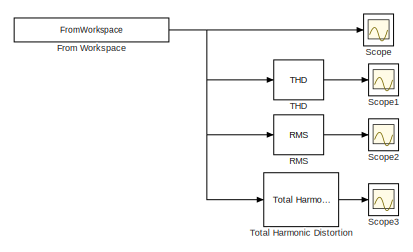
[diagram: root canvas - part 1/2, top left region]
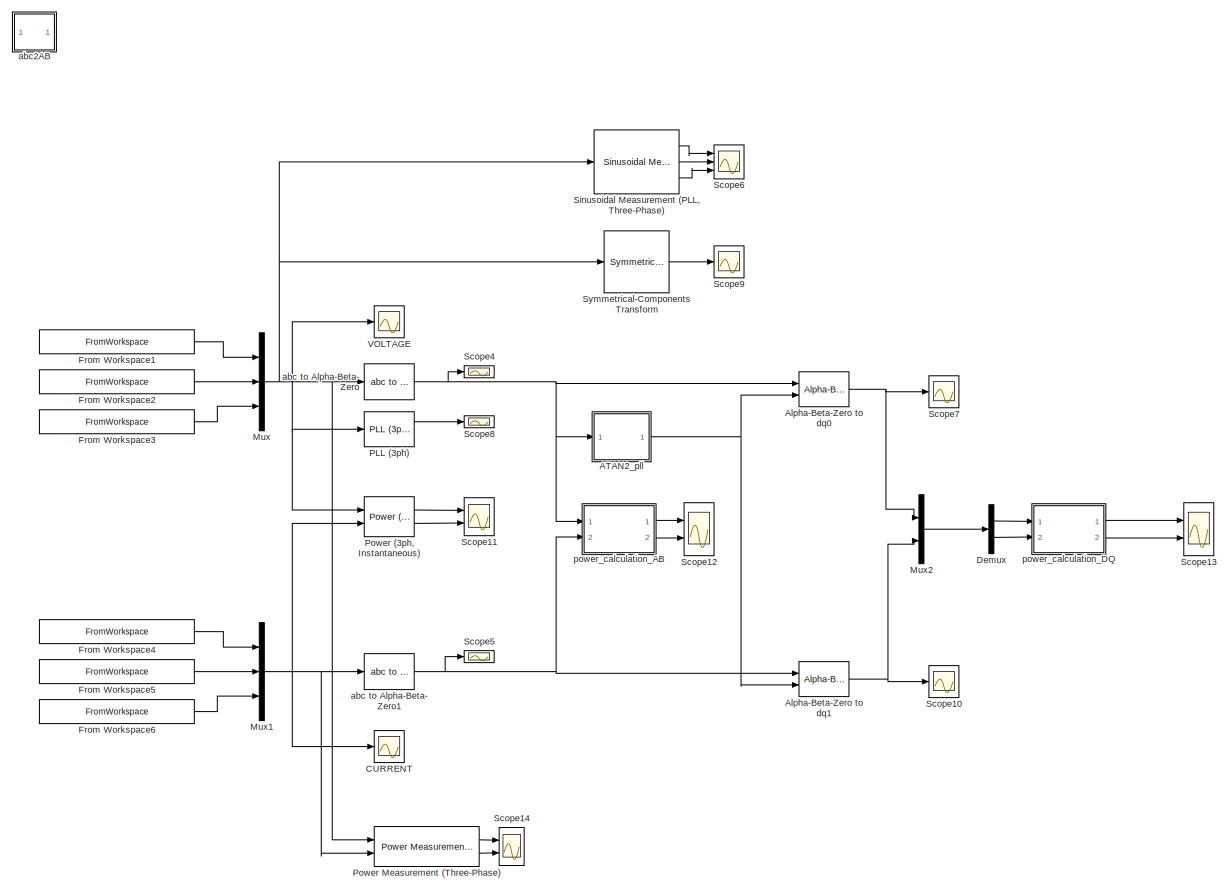
[diagram: root canvas - part 2/2, most of the canvas]
MODEL slx_ed6e85ab8370
KIND model
CONFIG AbsTol = auto
CONFIG EnableMultiTasking = off
CONFIG FixedStep = auto
CONFIG MaxStep = 1/25e3
CONFIG MinStep = auto
CONFIG RelTol = 1e-3
CONFIG SampleTimeConstraint = Unconstrained
CONFIG SolverName = VariableStepAuto
CONFIG StartTime = 0.0
CONFIG StopTime = 0.1
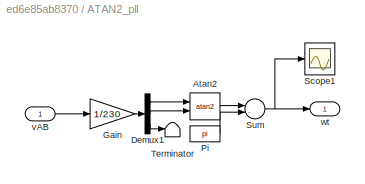
BLOCK [SubSystem] ATAN2_pll
  Ports = [1, 1]
  RequestExecContextInheritance = off
BLOCK [Trigonometry] ATAN2_pll/Atan2
  Operator = atan2
  Ports = [2, 1]
BLOCK [Demux] ATAN2_pll/Demux1
  Outputs = 3
  Ports = [1, 3]
BLOCK [Gain] ATAN2_pll/Gain
  Gain = 1/230
BLOCK [Constant] ATAN2_pll/Pi
  OutDataTypeStr = Inherit: Inherit via back propagation
  Value = pi
BLOCK [Scope] ATAN2_pll/Scope1
  Floating = off
  NumInputPorts = 1
  Ports = [1]
  ScopeSpecificationString = Simulink.scopes.TimeScopeBlockCfg('CurrentConfiguration', extmgr.ConfigurationSet(extmgr.Configuration('Core','General UI',true),extmgr.Configuration('Core','Source UI',true),extmgr.Configuration('Sources','WiredSimulink',true,'DataLoggingVariableName','ScopeData2'),extmgr.Configuration('Visuals','Time Domain',true,'SerializedDisplays',{struct('MinYLimReal','-0.78401','MaxYLimReal','7.06537','YLab...<+1389ch>
BLOCK [Sum] ATAN2_pll/Sum
  Inputs = |-+
  Ports = [2, 1]
BLOCK [Terminator] ATAN2_pll/Terminator
BLOCK [Inport] ATAN2_pll/vAB
BLOCK [Outport] ATAN2_pll/wt
BLOCK [Reference] Alpha-Beta-Zero to dq0  REF=spsAlphaBetaZerotodq0Lib/Alpha-Beta-Zero
to dq0
  Ports = [2, 1]
  SourceBlock = spsAlphaBetaZerotodq0Lib/Alpha-Beta-Zero\nto dq0
  SourceProductBaseCode = PS
  SourceType = Alpha-Beta-Zero to dq0 Transformation
BLOCK [Reference] Alpha-Beta-Zero to dq1  REF=spsAlphaBetaZerotodq0Lib/Alpha-Beta-Zero
to dq0
  Ports = [2, 1]
  SourceBlock = spsAlphaBetaZerotodq0Lib/Alpha-Beta-Zero\nto dq0
  SourceProductBaseCode = PS
  SourceType = Alpha-Beta-Zero to dq0 Transformation
BLOCK [Scope] CURRENT
  Floating = off
  NumInputPorts = 1
  Ports = [1]
  ScopeSpecificationString = Simulink.scopes.TimeScopeBlockCfg('CurrentConfiguration', extmgr.ConfigurationSet(extmgr.Configuration('Core','General UI',true),extmgr.Configuration('Core','Source UI',true),extmgr.Configuration('Sources','WiredSimulink',true,'DataLoggingVariableName','ScopeData10'),extmgr.Configuration('Visuals','Time Domain',true,'SerializedDisplays',{struct('MinYLimReal','-6.3737','MaxYLimReal','6.37369','YLab...<+1453ch>
BLOCK [Demux] Demux
  Outputs = 2
  Ports = [1, 2]
BLOCK [FromWorkspace] From Workspace
  Commented = on
  SampleTime = meas4.Timestamp(2)-meas4.Timestamp(1)
  VariableName = [meas4.Timestamp meas4.V_ch1]
BLOCK [FromWorkspace] From Workspace1
  SampleTime = -1
  VariableName = [meas32.Timestamp meas32.V_ch1]
BLOCK [FromWorkspace] From Workspace2
  SampleTime = -1
  VariableName = [meas32.Timestamp meas32.V_ch2]
BLOCK [FromWorkspace] From Workspace3
  SampleTime = -1
  VariableName = [meas32.Timestamp meas32.V_ch3]
BLOCK [FromWorkspace] From Workspace4
  SampleTime = -1
  VariableName = [meas32.Timestamp meas32.I_ch1]
BLOCK [FromWorkspace] From Workspace5
  SampleTime = -1
  VariableName = [meas32.Timestamp meas32.I_ch2]
BLOCK [FromWorkspace] From Workspace6
  SampleTime = -1
  VariableName = [meas32.Timestamp meas32.I_ch3]
BLOCK [Mux] Mux
  DisplayOption = bar
  Inputs = 3
  Ports = [3, 1]
BLOCK [Mux] Mux1
  DisplayOption = bar
  Inputs = 3
  Ports = [3, 1]
BLOCK [Mux] Mux2
  DisplayOption = bar
  Inputs = 2
  Ports = [2, 1]
BLOCK [Reference] PLL (3ph)  REF=spsPLL3phLib/PLL
(3ph)
  Ports = [1, 2]
  SourceBlock = spsPLL3phLib/PLL\n(3ph)
  SourceProductBaseCode = PS
  SourceType = PLL (3ph)
BLOCK [Reference] Power (3ph, Instantaneous)  REF=spsPower3phInstantaneousLib/Power
(3ph, Instantaneous)
  Ports = [2, 2]
  SourceBlock = spsPower3phInstantaneousLib/Power\n(3ph, Instantaneous)
  SourceProductBaseCode = PS
  SourceType = Power (3ph, Instantaneous)
BLOCK [Reference] Power Measurement (Three-Phase)  REF=eePowerMeasurement/Power Measurement
(Three-Phase)
  Ports = [2, 2]
  SourceBlock = eePowerMeasurement/Power Measurement\n(Three-Phase)
  SourceProductBaseCode = PS
  SourceType = Power Measurement (Three-Phase)
BLOCK [Reference] RMS  REF=spsRMSLib/RMS
  Commented = on
  Ports = [1, 1]
  SourceBlock = spsRMSLib/RMS
  SourceProductBaseCode = PS
  SourceType = RMS
BLOCK [Scope] Scope
  Commented = on
  Floating = off
  NumInputPorts = 1
  Ports = [1]
  ScopeSpecificationString = Simulink.scopes.TimeScopeBlockCfg('CurrentConfiguration', extmgr.ConfigurationSet(extmgr.Configuration('Core','General UI',true),extmgr.Configuration('Core','Source UI',true),extmgr.Configuration('Sources','WiredSimulink',true),extmgr.Configuration('Visuals','Time Domain',true,'SerializedDisplays',{struct('MinYLimReal','-373.6431','MaxYLimReal','385.96022','YLabelReal','','MinYLimMag',' 0.00000','...<+1392ch>
BLOCK [Scope] Scope1
  Commented = on
  Floating = off
  NumInputPorts = 1
  Ports = [1]
  ScopeSpecificationString = Simulink.scopes.TimeScopeBlockCfg('CurrentConfiguration', extmgr.ConfigurationSet(extmgr.Configuration('Core','General UI',true),extmgr.Configuration('Core','Source UI',true),extmgr.Configuration('Sources','WiredSimulink',true,'DataLoggingVariableName','ScopeData1'),extmgr.Configuration('Visuals','Time Domain',true,'SerializedDisplays',{struct('MinYLimReal','-0.00317','MaxYLimReal','0.02853','YLab...<+1408ch>
BLOCK [Scope] Scope10
  Floating = off
  NumInputPorts = 1
  Ports = [1]
  ScopeSpecificationString = Simulink.scopes.TimeScopeBlockCfg('CurrentConfiguration', extmgr.ConfigurationSet(extmgr.Configuration('Core','General UI',true),extmgr.Configuration('Core','Source UI',true),extmgr.Configuration('Sources','WiredSimulink',true,'DataLoggingVariableName','ScopeData6'),extmgr.Configuration('Visuals','Time Domain',true,'SerializedDisplays',{struct('MinYLimReal','-0.6251','MaxYLimReal','5.62586','YLabe...<+1481ch>
BLOCK [Scope] Scope11
  Floating = off
  NumInputPorts = 2
  Ports = [2]
  ScopeSpecificationString = Simulink.scopes.TimeScopeBlockCfg('CurrentConfiguration', extmgr.ConfigurationSet(extmgr.Configuration('Core','General UI',true),extmgr.Configuration('Core','Source UI',true),extmgr.Configuration('Sources','WiredSimulink',true,'DataLoggingVariableName','ScopeData7'),extmgr.Configuration('Visuals','Time Domain',true,'SerializedDisplays',{struct('MinYLimReal','1724.79942','MaxYLimReal','1725.60865',...<+2117ch>
BLOCK [Scope] Scope12
  Floating = off
  NumInputPorts = 2
  Ports = [2]
  ScopeSpecificationString = Simulink.scopes.TimeScopeBlockCfg('CurrentConfiguration', extmgr.ConfigurationSet(extmgr.Configuration('Core','General UI',true),extmgr.Configuration('Core','Source UI',true),extmgr.Configuration('Sources','WiredSimulink',true,'DataLoggingVariableName','ScopeData8'),extmgr.Configuration('Visuals','Time Domain',true,'SerializedDisplays',{struct('MinYLimReal','452.98094','MaxYLimReal','754.15791','Y...<+2128ch>
BLOCK [Scope] Scope13
  Floating = off
  NumInputPorts = 2
  Ports = [2]
  ScopeSpecificationString = Simulink.scopes.TimeScopeBlockCfg('CurrentConfiguration', extmgr.ConfigurationSet(extmgr.Configuration('Core','General UI',true),extmgr.Configuration('Core','Source UI',true),extmgr.Configuration('Sources','WiredSimulink',true,'DataLoggingVariableName','ScopeData1'),extmgr.Configuration('Visuals','Time Domain',true,'SerializedDisplays',{struct('MinYLimReal','679.47142','MaxYLimReal','1131.23687','...<+2130ch>
BLOCK [Scope] Scope14
  Floating = off
  NumInputPorts = 2
  Ports = [2]
  ScopeSpecificationString = Simulink.scopes.TimeScopeBlockCfg('CurrentConfiguration', extmgr.ConfigurationSet(extmgr.Configuration('Core','General UI',true),extmgr.Configuration('Core','Source UI',true),extmgr.Configuration('Sources','WiredSimulink',true,'DataLoggingVariableName','ScopeData2'),extmgr.Configuration('Visuals','Time Domain',true,'SerializedDisplays',{struct('MinYLimReal','-111.10952','MaxYLimReal','995.49671','...<+1701ch>
BLOCK [Scope] Scope2
  Commented = on
  Floating = off
  NumInputPorts = 1
  Ports = [1]
  ScopeSpecificationString = Simulink.scopes.TimeScopeBlockCfg('CurrentConfiguration', extmgr.ConfigurationSet(extmgr.Configuration('Core','General UI',true),extmgr.Configuration('Core','Source UI',true),extmgr.Configuration('Sources','WiredSimulink',true,'DataLoggingVariableName','ScopeData2'),extmgr.Configuration('Visuals','Time Domain',true,'SerializedDisplays',{struct('MinYLimReal','228.07838','MaxYLimReal','247.29455','Y...<+1422ch>
BLOCK [Scope] Scope3
  Commented = on
  Floating = off
  NumInputPorts = 1
  Ports = [1]
  ScopeSpecificationString = Simulink.scopes.TimeScopeBlockCfg('CurrentConfiguration', extmgr.ConfigurationSet(extmgr.Configuration('Core','General UI',true),extmgr.Configuration('Core','Source UI',true),extmgr.Configuration('Sources','WiredSimulink',true,'DataLoggingVariableName','ScopeData3'),extmgr.Configuration('Visuals','Time Domain',true,'SerializedDisplays',{struct('MinYLimReal','-0.31352','MaxYLimReal','2.82172','YLab...<+1430ch>
BLOCK [Scope] Scope4
  Floating = off
  NumInputPorts = 1
  Ports = [1]
  ScopeSpecificationString = Simulink.scopes.TimeScopeBlockCfg('CurrentConfiguration', extmgr.ConfigurationSet(extmgr.Configuration('Core','General UI',true),extmgr.Configuration('Core','Source UI',true),extmgr.Configuration('Sources','WiredSimulink',true,'DataLoggingVariableName','ScopeData2'),extmgr.Configuration('Visuals','Time Domain',true,'SerializedDisplays',{struct('MinYLimReal','49.95637','MaxYLimReal','50.02381','YLa...<+1422ch>
BLOCK [Scope] Scope5
  Floating = off
  NumInputPorts = 1
  Ports = [1]
  ScopeSpecificationString = Simulink.scopes.TimeScopeBlockCfg('CurrentConfiguration', extmgr.ConfigurationSet(extmgr.Configuration('Core','General UI',true),extmgr.Configuration('Core','Source UI',true),extmgr.Configuration('Sources','WiredSimulink',true,'DataLoggingVariableName','ScopeData3'),extmgr.Configuration('Visuals','Time Domain',true,'SerializedDisplays',{struct('MinYLimReal','-6.14075','MaxYLimReal','6.17318','YLab...<+1486ch>
BLOCK [Scope] Scope6
  Floating = off
  NumInputPorts = 3
  Ports = [3]
  ScopeSpecificationString = Simulink.scopes.TimeScopeBlockCfg('CurrentConfiguration', extmgr.ConfigurationSet(extmgr.Configuration('Core','General UI',true),extmgr.Configuration('Core','Source UI',true),extmgr.Configuration('Sources','WiredSimulink',true,'DataLoggingVariableName','ScopeData3'),extmgr.Configuration('Visuals','Time Domain',true,'SerializedDisplays',{struct('MinYLimReal','50.00000','MaxYLimReal','70.00000','YLa...<+2851ch>
BLOCK [Scope] Scope7
  Floating = off
  NumInputPorts = 1
  Ports = [1]
  ScopeSpecificationString = Simulink.scopes.TimeScopeBlockCfg('CurrentConfiguration', extmgr.ConfigurationSet(extmgr.Configuration('Core','General UI',true),extmgr.Configuration('Core','Source UI',true),extmgr.Configuration('Sources','WiredSimulink',true,'DataLoggingVariableName','ScopeData4'),extmgr.Configuration('Visuals','Time Domain',true,'SerializedDisplays',{struct('MinYLimReal','-28.75441','MaxYLimReal','258.7896','YL...<+1489ch>
BLOCK [Scope] Scope8
  Floating = off
  NumInputPorts = 1
  Ports = [1]
  ScopeSpecificationString = Simulink.scopes.TimeScopeBlockCfg('CurrentConfiguration', extmgr.ConfigurationSet(extmgr.Configuration('Core','General UI',true),extmgr.Configuration('Core','Source UI',true),extmgr.Configuration('Sources','WiredSimulink',true,'DataLoggingVariableName','ScopeData5'),extmgr.Configuration('Visuals','Time Domain',true,'SerializedDisplays',{struct('MinYLimReal','58.39624','MaxYLimReal','60.83421','YLa...<+1422ch>
BLOCK [Scope] Scope9
  Floating = off
  NumInputPorts = 1
  Ports = [1]
  ScopeSpecificationString = Simulink.scopes.TimeScopeBlockCfg('CurrentConfiguration', extmgr.ConfigurationSet(extmgr.Configuration('Core','General UI',true),extmgr.Configuration('Core','Source UI',true),extmgr.Configuration('Sources','WiredSimulink',true,'DataLoggingVariableName','ScopeData1'),extmgr.Configuration('Visuals','Time Domain',true,'SerializedDisplays',{struct('MinYLimReal','-90.78296','MaxYLimReal','94.92239','YL...<+1651ch>
BLOCK [Reference] Sinusoidal Measurement (PLL, Three-Phase)  REF=eeSinusoidalMeasurementV2/Sinusoidal Measurement
(PLL, Three-Phase)
  Ports = [1, 3]
  SourceBlock = eeSinusoidalMeasurementV2/Sinusoidal Measurement\n(PLL, Three-Phase)
  SourceProductBaseCode = PS
  SourceType = Sinusoidal Measurement (PLL, Three-Phase)
BLOCK [Reference] Symmetrical-Components Transform  REF=eeTransforms/Symmetrical-Components
Transform
  Ports = [1, 1]
  SourceBlock = eeTransforms/Symmetrical-Components\nTransform
  SourceProductBaseCode = PS
  SourceType = Symmetrical-Components Transform
BLOCK [Reference] THD  REF=spsTHDLib/THD
  Commented = on
  Ports = [1, 1]
  SourceBlock = spsTHDLib/THD
  SourceProductBaseCode = PS
  SourceType = THD
BLOCK [Reference] Total Harmonic Distortion  REF=eeTotalHarmonicDistorsion/Total Harmonic
Distortion
  Commented = on
  Ports = [1, 1]
  SourceBlock = eeTotalHarmonicDistorsion/Total Harmonic\nDistortion
  SourceProductBaseCode = PS
  SourceType = Total Harmonic Distortion
BLOCK [Scope] VOLTAGE
  Floating = off
  NumInputPorts = 1
  Ports = [1]
  ScopeSpecificationString = Simulink.scopes.TimeScopeBlockCfg('CurrentConfiguration', extmgr.ConfigurationSet(extmgr.Configuration('Core','General UI',true),extmgr.Configuration('Core','Source UI',true),extmgr.Configuration('Sources','WiredSimulink',true,'DataLoggingVariableName','ScopeData1'),extmgr.Configuration('Visuals','Time Domain',true,'SerializedDisplays',{struct('MinYLimReal','-287.49068','MaxYLimReal','287.48342','...<+1474ch>
BLOCK [Reference] abc to Alpha-Beta-Zero  REF=spsabctoAlphaBetaZeroLib/abc to
Alpha-Beta-Zero
  Ports = [1, 1]
  SourceBlock = spsabctoAlphaBetaZeroLib/abc to\nAlpha-Beta-Zero
  SourceProductBaseCode = PS
  SourceType = abc to Alpha-Beta-Zero Transformation
BLOCK [Reference] abc to Alpha-Beta-Zero1  REF=spsabctoAlphaBetaZeroLib/abc to
Alpha-Beta-Zero
  Ports = [1, 1]
  SourceBlock = spsabctoAlphaBetaZeroLib/abc to\nAlpha-Beta-Zero
  SourceProductBaseCode = PS
  SourceType = abc to Alpha-Beta-Zero Transformation
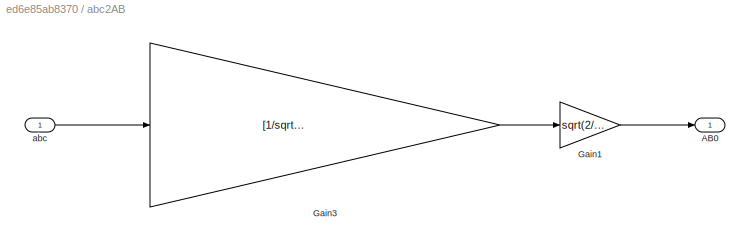
BLOCK [SubSystem] abc2AB
  Commented = on
  Ports = [1, 1]
  RequestExecContextInheritance = off
BLOCK [Outport] abc2AB/AB0
BLOCK [Gain] abc2AB/Gain1
  Gain = sqrt(2/3)
  OutDataTypeStr = Inherit: Same as input
  ParamDataTypeStr = Inherit: Same as input
  SaturateOnIntegerOverflow = on
BLOCK [Gain] abc2AB/Gain3
  Gain = [1/sqrt(2) 1/sqrt(2) 1/sqrt(2); 1 -1/2 -1/2; 0 sqrt(3)/2 -sqrt(3)/2]
  Multiplication = Matrix(K*u) (u vector)
  OutDataTypeStr = Inherit: Same as input
  ParamDataTypeStr = Inherit: Same as input
  SaturateOnIntegerOverflow = on
BLOCK [Inport] abc2AB/abc
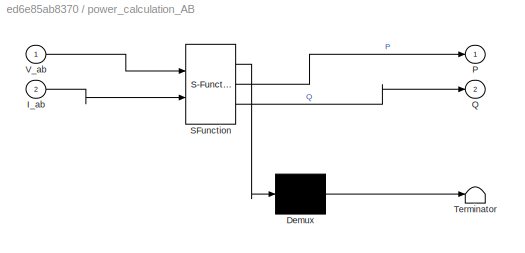
BLOCK [SubSystem] power_calculation_AB
  ErrorFcn = Stateflow.Translate.translate
  PermitHierarchicalResolution = ExplicitOnly
  Ports = [2, 2]
  RequestExecContextInheritance = off
  SFBlockType = MATLAB Function
  TreatAsAtomicUnit = on
BLOCK [Demux] power_calculation_AB/ Demux 
  Outputs = 1
  Ports = [1, 1]
BLOCK [S-Function] power_calculation_AB/ SFunction 
  EnableBusSupport = on
  FunctionName = sf_sfun
  PortCounts = [2 3]
  Ports = [2, 3]
  SFcnIsStateOwnerBlock = off
  SFunctionDeploymentMode = off
  Tag = Stateflow S-Function 2
BLOCK [Terminator] power_calculation_AB/ Terminator 
BLOCK [Inport] power_calculation_AB/I_ab
  Port = 2
BLOCK [Outport] power_calculation_AB/P
BLOCK [Outport] power_calculation_AB/Q
  Port = 2
BLOCK [Inport] power_calculation_AB/V_ab
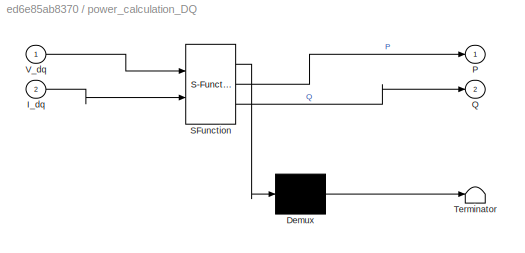
BLOCK [SubSystem] power_calculation_DQ
  ErrorFcn = Stateflow.Translate.translate
  PermitHierarchicalResolution = ExplicitOnly
  Ports = [2, 2]
  RequestExecContextInheritance = off
  SFBlockType = MATLAB Function
  TreatAsAtomicUnit = on
BLOCK [Demux] power_calculation_DQ/ Demux 
  Outputs = 1
  Ports = [1, 1]
BLOCK [S-Function] power_calculation_DQ/ SFunction 
  EnableBusSupport = on
  FunctionName = sf_sfun
  PortCounts = [2 3]
  Ports = [2, 3]
  SFcnIsStateOwnerBlock = off
  SFunctionDeploymentMode = off
  Tag = Stateflow S-Function 1
BLOCK [Terminator] power_calculation_DQ/ Terminator 
BLOCK [Inport] power_calculation_DQ/I_dq
  Port = 2
BLOCK [Outport] power_calculation_DQ/P
BLOCK [Outport] power_calculation_DQ/Q
  Port = 2
BLOCK [Inport] power_calculation_DQ/V_dq
LINE ATAN2_pll/Atan2:1 -> ATAN2_pll/Sum:1
LINE ATAN2_pll/Demux1:1 -> ATAN2_pll/Atan2:1
LINE ATAN2_pll/Demux1:2 -> ATAN2_pll/Atan2:2
LINE ATAN2_pll/Demux1:3 -> ATAN2_pll/Terminator:1
LINE ATAN2_pll/Gain:1 -> ATAN2_pll/Demux1:1
LINE ATAN2_pll/Pi:1 -> ATAN2_pll/Sum:2
NET ATAN2_pll/Sum:1 -> ATAN2_pll/Scope1:1, ATAN2_pll/wt:1
LINE ATAN2_pll/vAB:1 -> ATAN2_pll/Gain:1
NET ATAN2_pll:1 -> Alpha-Beta-Zero to dq0:2, Alpha-Beta-Zero to dq1:2
NET Alpha-Beta-Zero to dq0:1 -> Mux2:1, Scope7:1
NET Alpha-Beta-Zero to dq1:1 -> Mux2:2, Scope10:1
LINE Demux:1 -> power_calculation_DQ:1
LINE Demux:2 -> power_calculation_DQ:2
LINE From Workspace1:1 -> Mux:1
LINE From Workspace2:1 -> Mux:2
LINE From Workspace3:1 -> Mux:3
LINE From Workspace4:1 -> Mux1:1
LINE From Workspace5:1 -> Mux1:2
LINE From Workspace6:1 -> Mux1:3
NET From Workspace:1 -> RMS:1, Scope:1, THD:1, Total Harmonic Distortion:1
NET Mux1:1 -> CURRENT:1, Power (3ph, Instantaneous):2, Power Measurement (Three-Phase):2, abc to Alpha-Beta-Zero1:1
LINE Mux2:1 -> Demux:1
NET Mux:1 -> PLL (3ph):1, Power (3ph, Instantaneous):1, Power Measurement (Three-Phase):1, Sinusoidal Measurement (PLL, Three-Phase):1, Symmetrical-Components Transform:1, VOLTAGE:1, abc to Alpha-Beta-Zero:1
LINE PLL (3ph):1 -> Scope8:1
LINE Power (3ph, Instantaneous):1 -> Scope11:1
LINE Power (3ph, Instantaneous):2 -> Scope11:2
LINE Power Measurement (Three-Phase):1 -> Scope14:1
LINE Power Measurement (Three-Phase):2 -> Scope14:2
LINE RMS:1 -> Scope2:1
LINE Sinusoidal Measurement (PLL, Three-Phase):1 -> Scope6:1
LINE Sinusoidal Measurement (PLL, Three-Phase):2 -> Scope6:2
LINE Sinusoidal Measurement (PLL, Three-Phase):3 -> Scope6:3
LINE Symmetrical-Components Transform:1 -> Scope9:1
LINE THD:1 -> Scope1:1
LINE Total Harmonic Distortion:1 -> Scope3:1
NET abc to Alpha-Beta-Zero1:1 -> Alpha-Beta-Zero to dq1:1, Scope5:1, power_calculation_AB:2
NET abc to Alpha-Beta-Zero:1 -> ATAN2_pll:1, Alpha-Beta-Zero to dq0:1, Scope4:1, power_calculation_AB:1
LINE abc2AB/Gain1:1 -> abc2AB/AB0:1
LINE abc2AB/Gain3:1 -> abc2AB/Gain1:1
LINE abc2AB/abc:1 -> abc2AB/Gain3:1
LINE power_calculation_AB:1 -> Scope12:1
LINE power_calculation_AB:2 -> Scope12:2
LINE power_calculation_DQ:1 -> Scope13:1
LINE power_calculation_DQ:2 -> Scope13:2
note: NET lines group one-source signal fan-out (src -> all destinations, sorted); 1:1 wires keep LINE
CHART power_calculation_AB states=1 transitions=1
  STATE_LABEL 'eML_blk_kernel()'
  STATE_LABEL 'SCRIPT:\nfunction [P,Q] = fcn(V_ab, I_ab)\n\n%%ref: http://repositorium.sdum.uminho.pt/bitstream/1822/1864/1/ISIE-03_JLA.pdf\nP = V_ab(1)*I_ab(1) + V_ab(2)*I_ab(2);\nQ = V_ab(2)*I_ab(1) - V_ab(1)*I_ab(2);\n'
CHART power_calculation_DQ states=1 transitions=1
  STATE_LABEL 'eML_blk_kernel()'
  STATE_LABEL 'SCRIPT:\nfunction [P,Q] = fcn(V_dq, I_dq)\n\n%%ref: http://repositorium.sdum.uminho.pt/bitstream/1822/1864/1/ISIE-03_JLA.pdf\nP = 3/2 * V_dq(1) * I_dq(1);\nQ = 3/2 * V_dq(1) * I_dq(2);\n'
CHART  states=0 transitions=0
CHART  states=0 transitions=0
